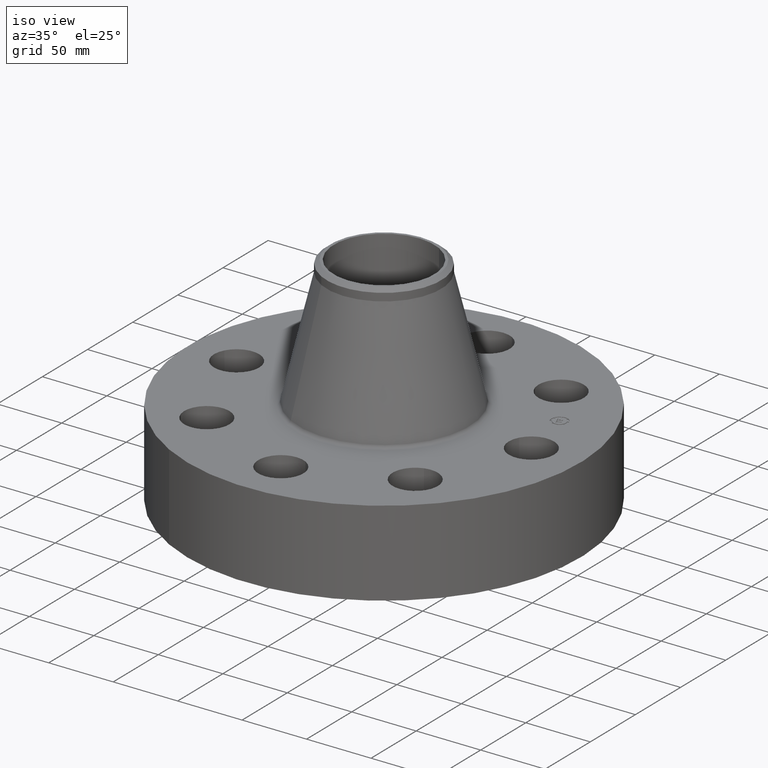
[diagram: clean part render]
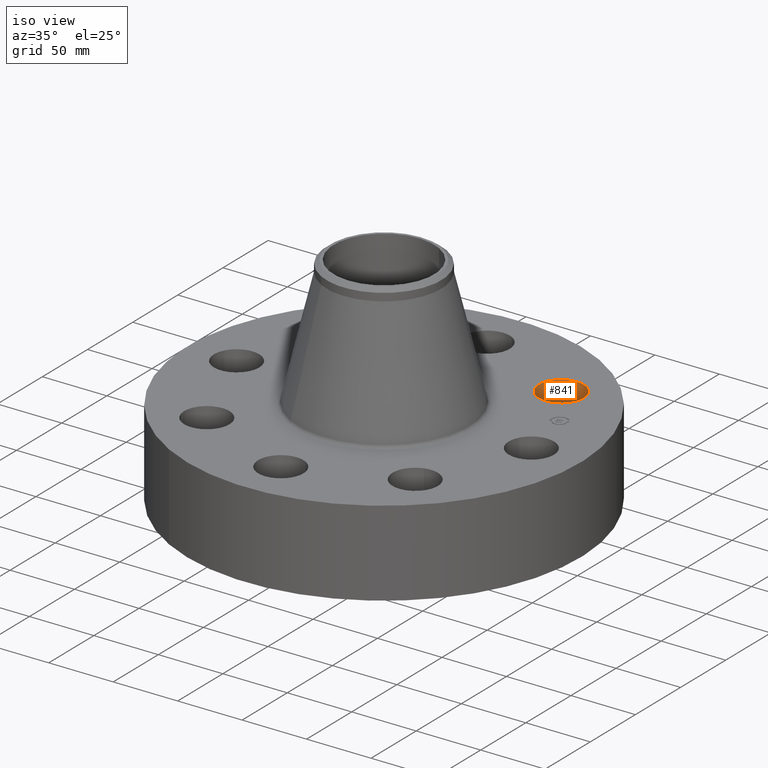
[diagram: same view with one face highlighted and labeled with its STEP entity id]
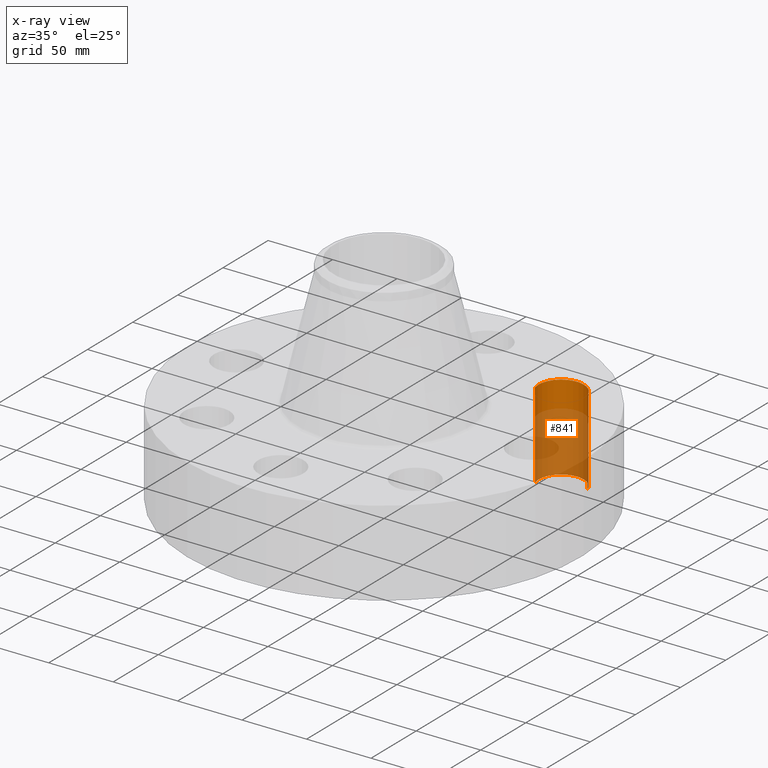
[diagram: x-ray of the same camera — body ghosted, the highlighted face saturated]
A machine part, iso view. The second image highlights one B-rep face of the part: STEP entity #841.
The next image is the same camera in x-ray: the body ghosted, the highlighted face saturated — about 69% of this face is hidden behind the body in this view.
In plain terms, the highlighted cylindrical surface (edge-blend (fillet) strip) has radius 17.526 mm, axis along (0, 0, -1).
Its self-contained STEP definition (entity closure, byte-faithful):
#622=AXIS2_PLACEMENT_3D('Circle Axis2P3D',#620,#621,$) ;
#814=AXIS2_PLACEMENT_3D('Cylinder Axis2P3D',#811,#812,#813) ;
#832=AXIS2_PLACEMENT_3D('Circle Axis2P3D',#830,#831,$) ;
#620=CARTESIAN_POINT('Axis2P3D Location',(3.18198051535,3.18198051535,0.)) ;
#624=CARTESIAN_POINT('Vertex',(2.51989127066,2.98771823886,0.)) ;
#626=CARTESIAN_POINT('Vertex',(3.84406976004,3.37624279184,0.)) ;
#811=CARTESIAN_POINT('Axis2P3D Location',(3.18198051535,3.18198051535,2.61606299214)) ;
#816=CARTESIAN_POINT('Line Origine',(2.51989127066,2.98771823886,1.31000000001)) ;
#820=CARTESIAN_POINT('Vertex',(2.51989127066,2.98771823886,2.62000000001)) ;
#823=CARTESIAN_POINT('Line Origine',(3.84406976004,3.37624279184,1.31000000001)) ;
#827=CARTESIAN_POINT('Vertex',(3.84406976004,3.37624279184,2.62000000001)) ;
#830=CARTESIAN_POINT('Axis2P3D Location',(3.18198051535,3.18198051535,2.62000000001)) ;
#621=DIRECTION('Axis2P3D Direction',(0.,0.,-0.0393700787402)) ;
#812=DIRECTION('Axis2P3D Direction',(0.,0.,-0.0393700787402)) ;
#813=DIRECTION('Axis2P3D XDirection',(0.0377775444876,0.0110842335096,0.)) ;
#817=DIRECTION('Vector Direction',(0.,0.,-0.0393700787402)) ;
#824=DIRECTION('Vector Direction',(0.,0.,-0.0393700787402)) ;
#831=DIRECTION('Axis2P3D Direction',(0.,0.,-0.0393700787402)) ;
#818=VECTOR('Line Direction',#817,0.0393700787402) ;
#825=VECTOR('Line Direction',#824,0.0393700787402) ;
#836=ORIENTED_EDGE('',*,*,#822,.F.) ;
#837=ORIENTED_EDGE('',*,*,#628,.T.) ;
#838=ORIENTED_EDGE('',*,*,#829,.T.) ;
#839=ORIENTED_EDGE('',*,*,#834,.F.) ;
#841=ADVANCED_FACE('PartBody',(#840),#815,.F.) ;
#623=CIRCLE('generated circle',#622,0.690000000003) ;
#833=CIRCLE('generated circle',#832,0.690000000003) ;
#815=CYLINDRICAL_SURFACE('generated cylinder',#814,0.690000000003) ;
#628=EDGE_CURVE('',#625,#627,#623,.T.) ;
#822=EDGE_CURVE('',#625,#821,#819,.F.) ;
#829=EDGE_CURVE('',#627,#828,#826,.F.) ;
#834=EDGE_CURVE('',#821,#828,#833,.T.) ;
#835=EDGE_LOOP('',(#836,#837,#838,#839)) ;
#840=FACE_OUTER_BOUND('',#835,.T.) ;
#819=LINE('Line',#816,#818) ;
#826=LINE('Line',#823,#825) ;
#625=VERTEX_POINT('',#624) ;
#627=VERTEX_POINT('',#626) ;
#821=VERTEX_POINT('',#820) ;
#828=VERTEX_POINT('',#827) ;